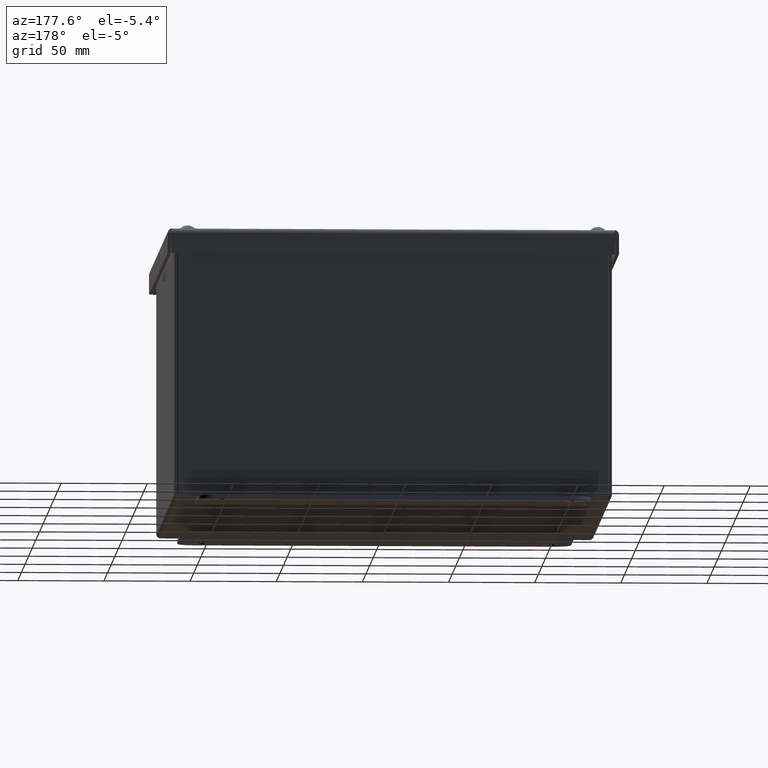
[diagram: clean part render]
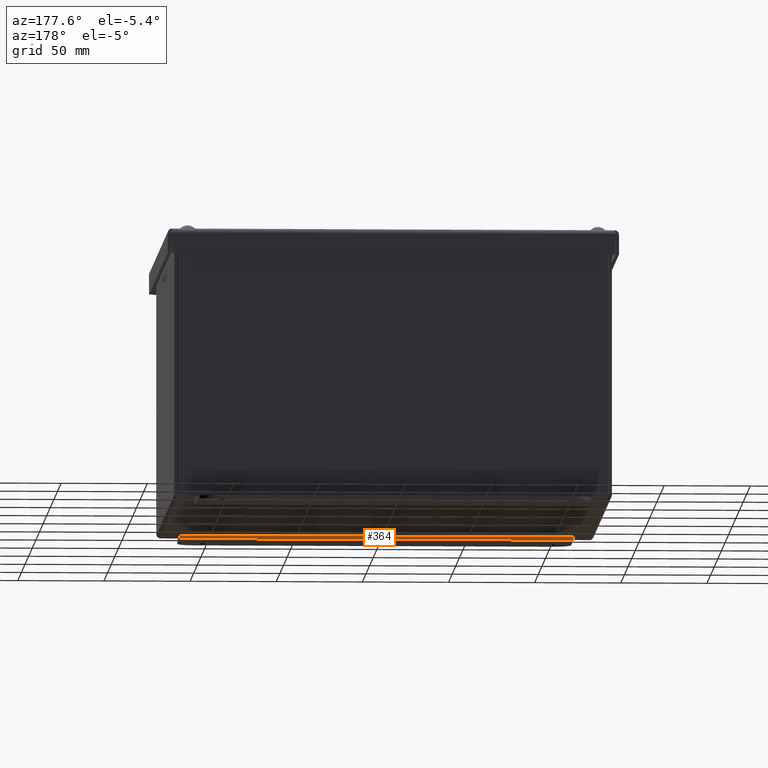
[diagram: same view with one face highlighted and labeled with its STEP entity id]
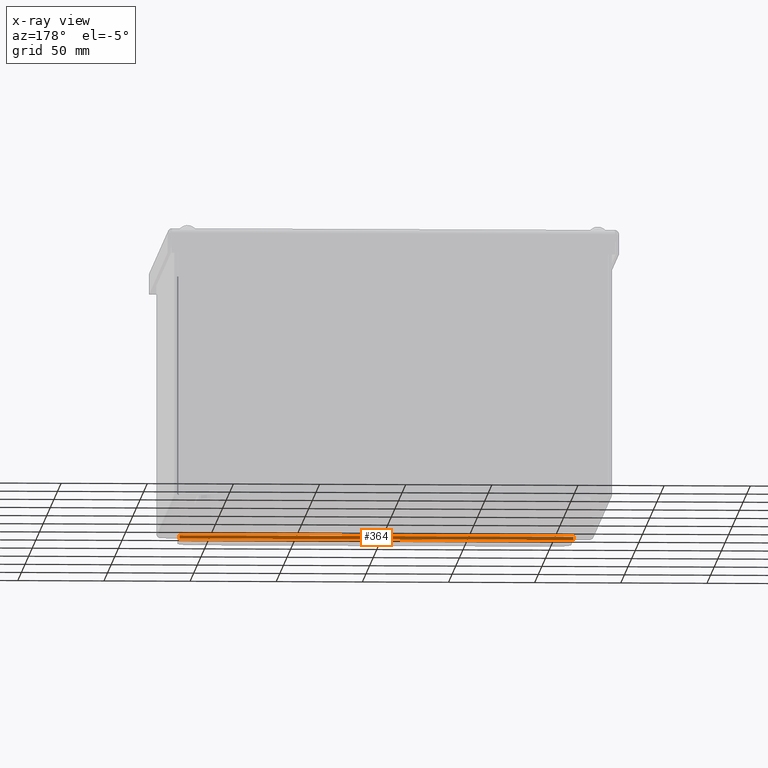
[diagram: x-ray of the same camera — body ghosted, the highlighted face saturated]
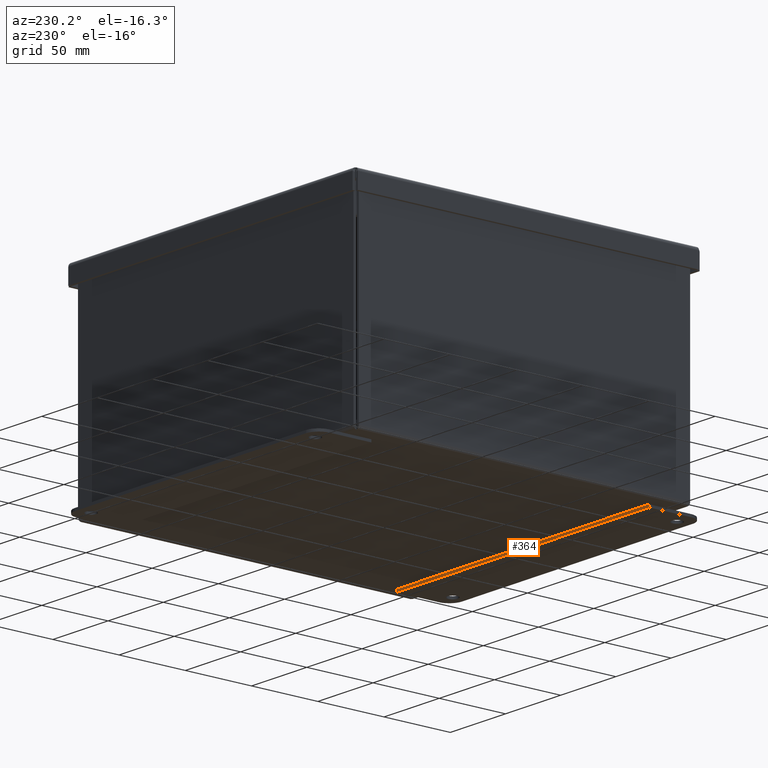
[diagram: same view with one face highlighted and labeled with its STEP entity id]
A machine part, auxiliary view. The second image highlights one B-rep face of the part: STEP entity #364.
The next image is the same camera in x-ray: the body ghosted, the highlighted face saturated — about 0% of this face is hidden behind the body in this view.
A second angle (auxiliary view) of the same face is appended — the face is thin or edge-on in the first view.
In plain terms, the highlighted planar face has unit normal (0, 1, 0).
Its self-contained STEP definition (entity closure, byte-faithful):
#180=CARTESIAN_POINT('',(0.0,0.0,0.075));
#181=VERTEX_POINT('',#180);
#198=CARTESIAN_POINT('',(0.0,0.0,0.0));
#199=VERTEX_POINT('',#198);
#206=CARTESIAN_POINT('',(0.0,0.0,0.0));
#207=DIRECTION('',(0.0,0.0,1.0));
#208=VECTOR('',#207,0.075);
#209=LINE('',#206,#208);
#210=EDGE_CURVE('',#199,#181,#209,.T.);
#317=CARTESIAN_POINT('',(9.0,0.0,0.075));
#318=VERTEX_POINT('',#317);
#325=CARTESIAN_POINT('',(9.0,0.0,0.0));
#326=VERTEX_POINT('',#325);
#327=CARTESIAN_POINT('',(9.0,0.0,0.0));
#328=DIRECTION('',(0.0,0.0,1.0));
#329=VECTOR('',#328,0.075);
#330=LINE('',#327,#329);
#331=EDGE_CURVE('',#326,#318,#330,.T.);
#343=CARTESIAN_POINT('',(9.0,0.0,0.0));
#344=DIRECTION('',(0.0,-1.0,0.0));
#345=DIRECTION('',(0.0,0.0,-1.0));
#346=AXIS2_PLACEMENT_3D('',#343,#344,#345);
#347=PLANE('',#346);
#348=CARTESIAN_POINT('',(9.0,0.0,0.075));
#349=DIRECTION('',(-1.0,0.0,0.0));
#350=VECTOR('',#349,9.0);
#351=LINE('',#348,#350);
#352=EDGE_CURVE('',#318,#181,#351,.T.);
#353=ORIENTED_EDGE('',*,*,#352,.T.);
#354=ORIENTED_EDGE('',*,*,#210,.F.);
#355=CARTESIAN_POINT('',(0.0,0.0,0.0));
#356=DIRECTION('',(1.0,0.0,0.0));
#357=VECTOR('',#356,9.0);
#358=LINE('',#355,#357);
#359=EDGE_CURVE('',#199,#326,#358,.T.);
#360=ORIENTED_EDGE('',*,*,#359,.T.);
#361=ORIENTED_EDGE('',*,*,#331,.T.);
#362=EDGE_LOOP('',(#353,#354,#360,#361));
#363=FACE_OUTER_BOUND('',#362,.T.);
#364=ADVANCED_FACE('',(#363),#347,.T.);